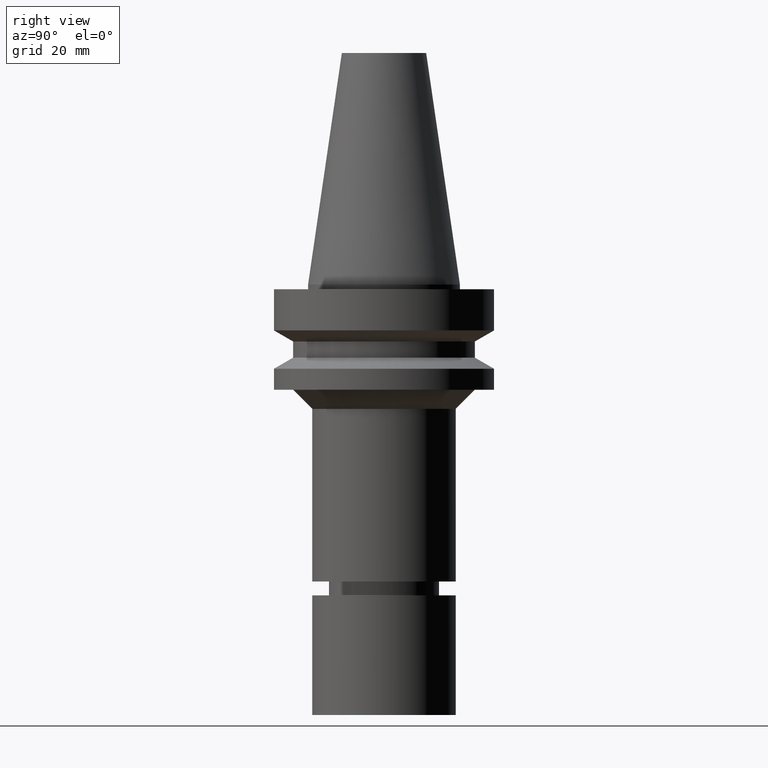
[diagram: clean part render]
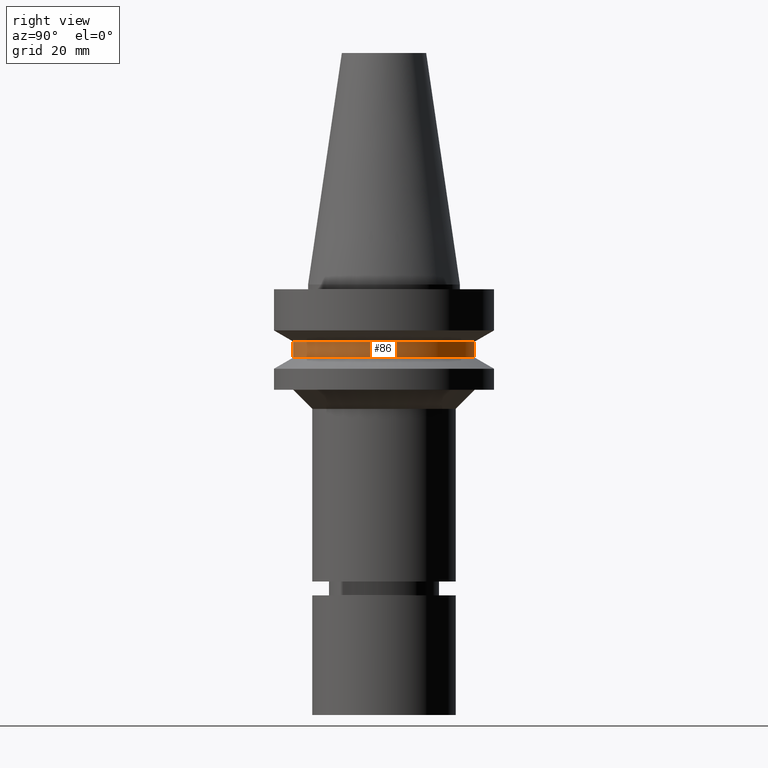
[diagram: same view with one face highlighted and labeled with its STEP entity id]
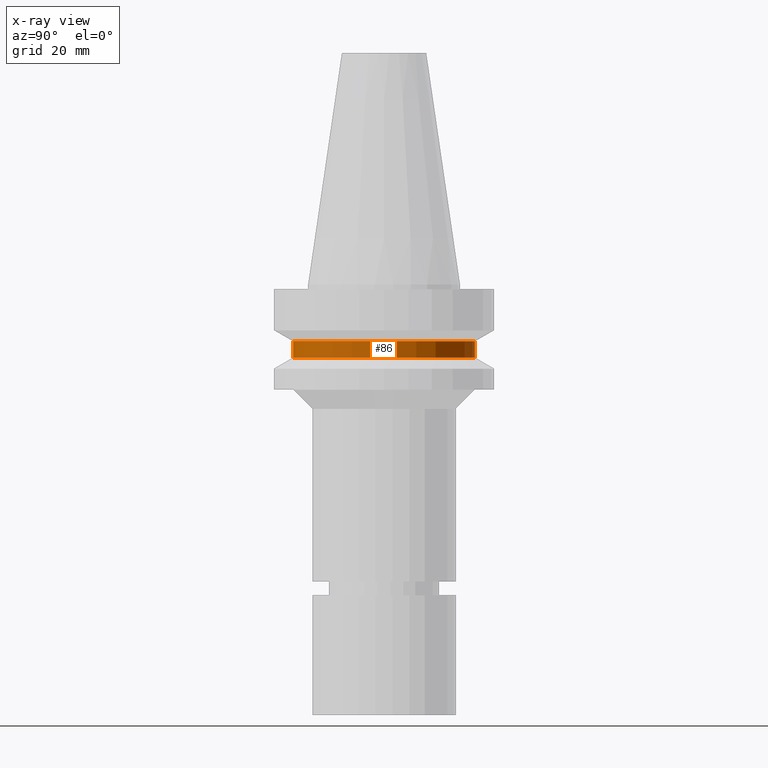
[diagram: x-ray of the same camera — body ghosted, the highlighted face saturated]
A machine part, right view. The second image highlights one B-rep face of the part: STEP entity #86.
The next image is the same camera in x-ray: the body ghosted, the highlighted face saturated — about 0% of this face is hidden behind the body in this view.
In plain terms, the highlighted cylindrical surface (bore or boss wall) has radius 19 mm, axis along (0, 0, -1).
Its self-contained STEP definition (entity closure, byte-faithful):
#86=ADVANCED_FACE('Unnamed[1]',(#216,#217),#218,.T.);
#101=EDGE_CURVE('Unnamed[1]',#240,#240,#241,.T.);
#137=EDGE_CURVE('Unnamed[1]',#297,#297,#298,.T.);
#216=FACE_BOUND('',#395,.T.);
#217=FACE_BOUND('',#396,.T.);
#218=CYLINDRICAL_SURFACE('',#397,19.0);
#240=VERTEX_POINT('',#425);
#241=CIRCLE('',#426,19.0);
#297=VERTEX_POINT('',#496);
#298=CIRCLE('',#497,19.0);
#395=EDGE_LOOP('',(#594));
#396=EDGE_LOOP('',(#595));
#397=AXIS2_PLACEMENT_3D('',#596,#597,#598);
#425=CARTESIAN_POINT('',(9.36279151221199E-016,19.0,-15.29059892));
#426=AXIS2_PLACEMENT_3D('',#622,#623,#624);
#496=CARTESIAN_POINT('',(7.29240495619202E-016,19.0,-11.90940108));
#497=AXIS2_PLACEMENT_3D('',#687,#688,#689);
#594=ORIENTED_EDGE('',*,*,#101,.F.);
#595=ORIENTED_EDGE('',*,*,#137,.T.);
#596=CARTESIAN_POINT('',(8.32759823420201E-016,1.6655196468404E-015,-13.6));
#597=DIRECTION('',(6.12323399573677E-017,1.22464679914665E-016,-1.0));
#598=DIRECTION('',(-1.23259516440783E-032,1.0,1.22464679914665E-016));
#622=CARTESIAN_POINT('',(9.36279151221199E-016,1.8725583024424E-015,-15.29059892));
#623=DIRECTION('',(6.12323399573677E-017,1.22464679914665E-016,-1.0));
#624=DIRECTION('',(-1.23259516440783E-032,1.0,1.22464679914665E-016));
#687=CARTESIAN_POINT('',(7.29240495619202E-016,1.4584809912384E-015,-11.90940108));
#688=DIRECTION('',(6.12323399573677E-017,1.22464679914665E-016,-1.0));
#689=DIRECTION('',(-1.23259516440783E-032,1.0,1.22464679914665E-016));